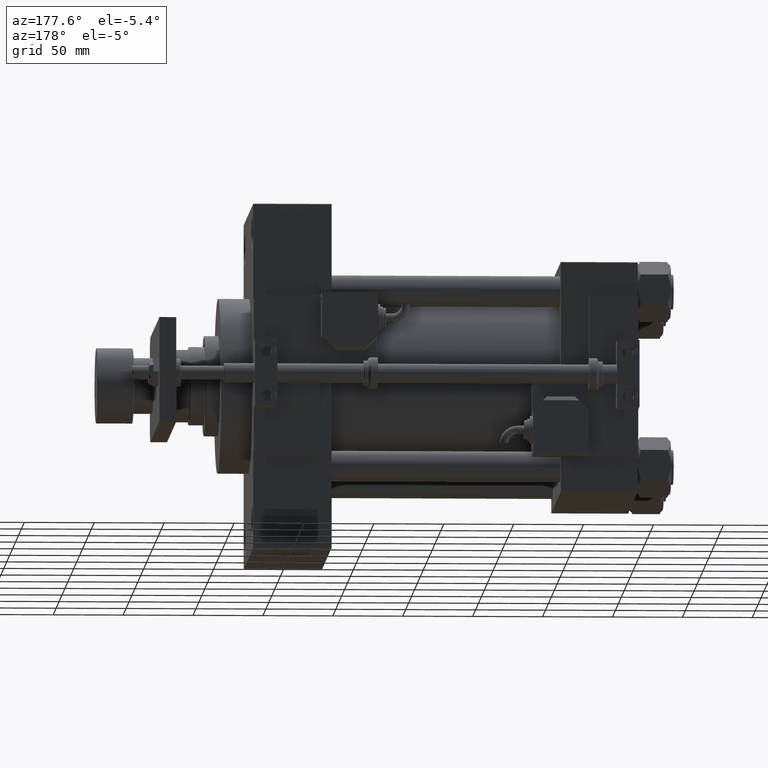
[diagram: clean part render]
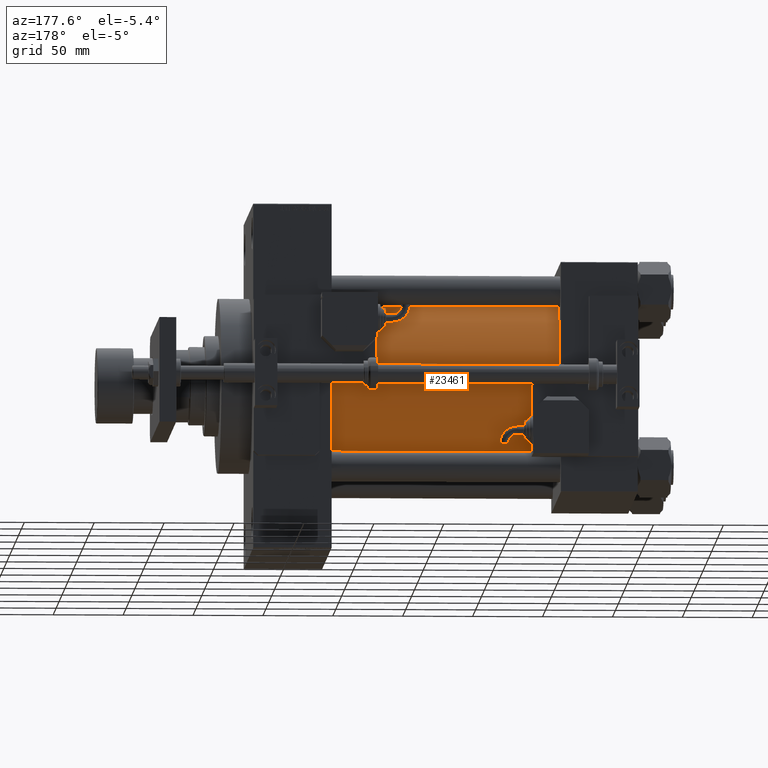
[diagram: same view with one face highlighted and labeled with its STEP entity id]
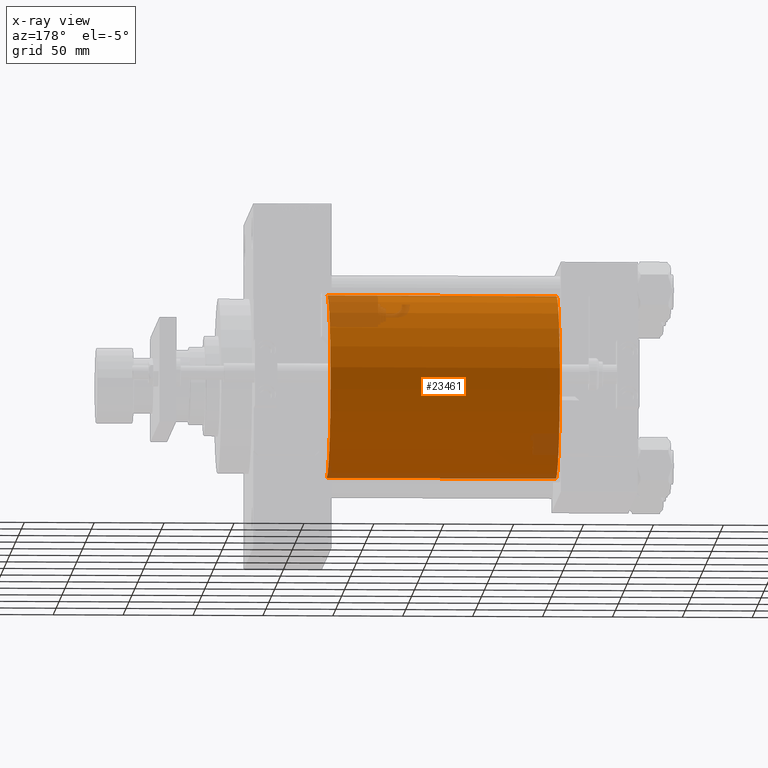
[diagram: x-ray of the same camera — body ghosted, the highlighted face saturated]
A machine part, auxiliary view. The second image highlights one B-rep face of the part: STEP entity #23461.
The next image is the same camera in x-ray: the body ghosted, the highlighted face saturated — about 9% of this face is hidden behind the body in this view.
In plain terms, the highlighted cylindrical surface (partial cylindrical patch) has radius 65.5 mm, axis along (-1, -0, -0).
Its self-contained STEP definition (entity closure, byte-faithful):
#160 = DIRECTION ( 'NONE',  ( 1.000000000000000000, 0.000000000000000000, 0.000000000000000000 ) ) ;
#967 = CIRCLE ( 'NONE', #44432, 65.50000000000001421 ) ;
#2883 = EDGE_CURVE ( 'NONE', #14150, #3450, #23462, .T. ) ;
#3450 = VERTEX_POINT ( 'NONE', #47046 ) ;
#4103 = VECTOR ( 'NONE', #32652, 1000.000000000000000 ) ;
#4251 = CARTESIAN_POINT ( 'NONE',  ( 54.99999999999999289, -2.602085213965210642E-15, 65.50000000000001421 ) ) ;
#4279 = CIRCLE ( 'NONE', #10394, 65.50000000000001421 ) ;
#7948 = DIRECTION ( 'NONE',  ( 1.000000000000000000, 0.000000000000000000, 0.000000000000000000 ) ) ;
#9459 = CARTESIAN_POINT ( 'NONE',  ( 219.0000000000000000, 5.419351320449954973E-15, -65.50000000000001421 ) ) ;
#10394 = AXIS2_PLACEMENT_3D ( 'NONE', #37716, #160, #29298 ) ;
#12023 = CARTESIAN_POINT ( 'NONE',  ( 54.99999999999999289, -2.602085213965210642E-15, 0.000000000000000000 ) ) ;
#13535 = CARTESIAN_POINT ( 'NONE',  ( 219.0000000000000000, -2.602085213965210642E-15, 0.000000000000000000 ) ) ;
#14150 = VERTEX_POINT ( 'NONE', #9459 ) ;
#17987 = EDGE_CURVE ( 'NONE', #27014, #44020, #52542, .T. ) ;
#18888 = VECTOR ( 'NONE', #48776, 1000.000000000000000 ) ;
#21399 = EDGE_LOOP ( 'NONE', ( #31188, #24062, #35123, #38472 ) ) ;
#23461 = ADVANCED_FACE ( 'NONE', ( #42112 ), #34753, .T. ) ;
#23462 = LINE ( 'NONE', #36239, #18888 ) ;
#24062 = ORIENTED_EDGE ( 'NONE', *, *, #2883, .T. ) ;
#27014 = VERTEX_POINT ( 'NONE', #28465 ) ;
#28465 = CARTESIAN_POINT ( 'NONE',  ( 219.0000000000000000, -2.602085213965210642E-15, 65.50000000000001421 ) ) ;
#29298 = DIRECTION ( 'NONE',  ( 0.000000000000000000, 0.000000000000000000, -1.000000000000000000 ) ) ;
#31188 = ORIENTED_EDGE ( 'NONE', *, *, #43939, .F. ) ;
#32106 = CARTESIAN_POINT ( 'NONE',  ( 219.0000000000000000, -2.602085213965210642E-15, 65.50000000000001421 ) ) ;
#32652 = DIRECTION ( 'NONE',  ( -1.000000000000000000, -0.000000000000000000, -0.000000000000000000 ) ) ;
#34753 = CYLINDRICAL_SURFACE ( 'NONE', #37358, 65.50000000000001421 ) ;
#35123 = ORIENTED_EDGE ( 'NONE', *, *, #48417, .T. ) ;
#36239 = CARTESIAN_POINT ( 'NONE',  ( 219.0000000000000000, 5.419351320449954973E-15, -65.50000000000001421 ) ) ;
#37358 = AXIS2_PLACEMENT_3D ( 'NONE', #13535, #46743, #38284 ) ;
#37716 = CARTESIAN_POINT ( 'NONE',  ( 219.0000000000000000, -2.602085213965210642E-15, 0.000000000000000000 ) ) ;
#38284 = DIRECTION ( 'NONE',  ( 0.000000000000000000, 0.000000000000000000, 1.000000000000000000 ) ) ;
#38472 = ORIENTED_EDGE ( 'NONE', *, *, #17987, .F. ) ;
#42112 = FACE_OUTER_BOUND ( 'NONE', #21399, .T. ) ;
#43939 = EDGE_CURVE ( 'NONE', #14150, #27014, #4279, .T. ) ;
#44020 = VERTEX_POINT ( 'NONE', #4251 ) ;
#44432 = AXIS2_PLACEMENT_3D ( 'NONE', #12023, #7948, #49858 ) ;
#46743 = DIRECTION ( 'NONE',  ( -1.000000000000000000, -0.000000000000000000, -0.000000000000000000 ) ) ;
#47046 = CARTESIAN_POINT ( 'NONE',  ( 54.99999999999999289, 5.419351320449954973E-15, -65.50000000000001421 ) ) ;
#48417 = EDGE_CURVE ( 'NONE', #3450, #44020, #967, .T. ) ;
#48776 = DIRECTION ( 'NONE',  ( -1.000000000000000000, -0.000000000000000000, -0.000000000000000000 ) ) ;
#49858 = DIRECTION ( 'NONE',  ( 0.000000000000000000, 0.000000000000000000, 1.000000000000000000 ) ) ;
#52542 = LINE ( 'NONE', #32106, #4103 ) ;